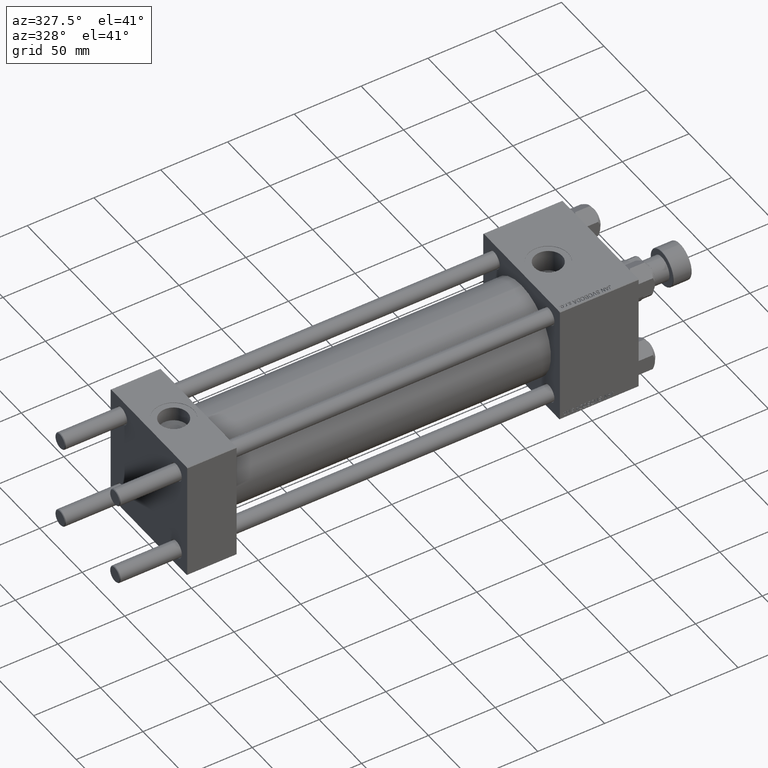
[diagram: clean part render]
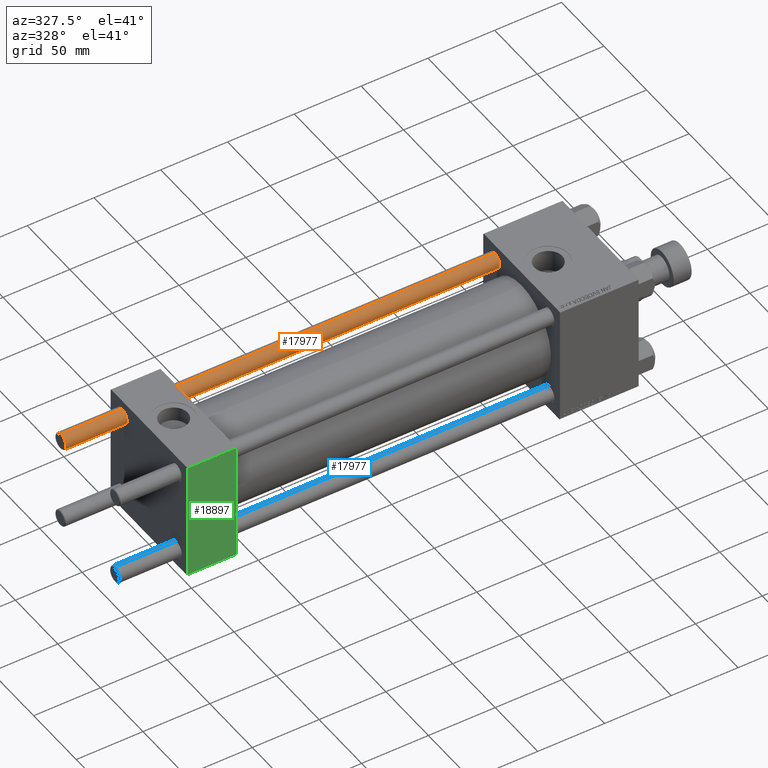
[diagram: same view with three faces highlighted in distinct colors, each labeled with its STEP entity id]
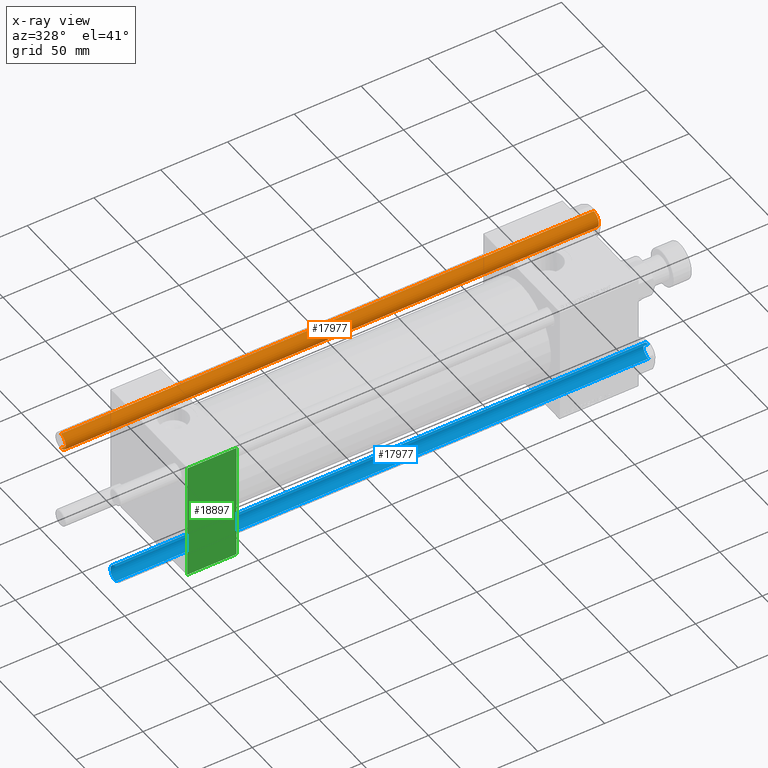
[diagram: x-ray of the same camera — body ghosted, the three highlighted faces saturated]
A machine part, auxiliary view with three faces highlighted in distinct colors.
The next image is the same camera in x-ray (body ghosted, the three faces saturated) — at least one of them is partly hidden behind the body in this view.
Their STEP definitions:

[orange] entity #17977 — the highlighted cylindrical surface (edge-blend (fillet) strip) has radius 6 mm, axis along (-1, -0, -0).
#1877 = EDGE_CURVE ( 'NONE', #40832, #13497, #8719, .T. ) ;
#2171 = ORIENTED_EDGE ( 'NONE', *, *, #1877, .T. ) ;
#2324 = VECTOR ( 'NONE', #48923, 1000.000000000000000 ) ;
#5380 = EDGE_CURVE ( 'NONE', #40832, #17504, #48424, .T. ) ;
#5912 = FACE_OUTER_BOUND ( 'NONE', #13987, .T. ) ;
#5990 = CARTESIAN_POINT ( 'NONE',  ( 6.000000000000000888, 7.347880794884120722E-16, 400.0000000000000000 ) ) ;
#6394 = DIRECTION ( 'NONE',  ( -1.000000000000000000, 0.000000000000000000, 0.000000000000000000 ) ) ;
#7726 = CIRCLE ( 'NONE', #16636, 6.000000000000000888 ) ;
#8371 = CARTESIAN_POINT ( 'NONE',  ( -6.000000000000000888, 0.000000000000000000, 400.0000000000000000 ) ) ;
#8630 = CARTESIAN_POINT ( 'NONE',  ( 6.000000000000000888, 7.347880794884120722E-16, 0.5000000000000004441 ) ) ;
#8719 = CIRCLE ( 'NONE', #24965, 6.000000000000000888 ) ;
#12286 = ORIENTED_EDGE ( 'NONE', *, *, #42449, .T. ) ;
#12485 = VERTEX_POINT ( 'NONE', #21336 ) ;
#13497 = VERTEX_POINT ( 'NONE', #18390 ) ;
#13987 = EDGE_LOOP ( 'NONE', ( #50209, #2171, #45326, #12286 ) ) ;
#15001 = DIRECTION ( 'NONE',  ( 0.000000000000000000, 0.000000000000000000, -1.000000000000000000 ) ) ;
#16636 = AXIS2_PLACEMENT_3D ( 'NONE', #30912, #34227, #49494 ) ;
#17504 = VERTEX_POINT ( 'NONE', #8630 ) ;
#17977 = ADVANCED_FACE ( 'NONE', ( #5912 ), #29020, .T. ) ;
#18390 = CARTESIAN_POINT ( 'NONE',  ( -6.000000000000000888, 0.000000000000000000, 399.5000000000000000 ) ) ;
#18556 = DIRECTION ( 'NONE',  ( 1.000000000000000000, 0.000000000000000000, 0.000000000000000000 ) ) ;
#18854 = EDGE_CURVE ( 'NONE', #13497, #12485, #46999, .T. ) ;
#21336 = CARTESIAN_POINT ( 'NONE',  ( -6.000000000000000888, 0.000000000000000000, 0.5000000000000004441 ) ) ;
#24965 = AXIS2_PLACEMENT_3D ( 'NONE', #46765, #15001, #18556 ) ;
#25205 = DIRECTION ( 'NONE',  ( -0.000000000000000000, -0.000000000000000000, -1.000000000000000000 ) ) ;
#29020 = CYLINDRICAL_SURFACE ( 'NONE', #44007, 6.000000000000000888 ) ;
#29858 = CARTESIAN_POINT ( 'NONE',  ( 6.000000000000000888, 7.347880794884120722E-16, 399.5000000000000000 ) ) ;
#30912 = CARTESIAN_POINT ( 'NONE',  ( 0.000000000000000000, 0.000000000000000000, 0.5000000000000004441 ) ) ;
#34227 = DIRECTION ( 'NONE',  ( -0.000000000000000000, -0.000000000000000000, 1.000000000000000000 ) ) ;
#37369 = CARTESIAN_POINT ( 'NONE',  ( 0.000000000000000000, 0.000000000000000000, 400.0000000000000000 ) ) ;
#40832 = VERTEX_POINT ( 'NONE', #29858 ) ;
#42449 = EDGE_CURVE ( 'NONE', #12485, #17504, #7726, .T. ) ;
#42666 = DIRECTION ( 'NONE',  ( -0.000000000000000000, -0.000000000000000000, -1.000000000000000000 ) ) ;
#44007 = AXIS2_PLACEMENT_3D ( 'NONE', #37369, #25205, #6394 ) ;
#44046 = VECTOR ( 'NONE', #42666, 1000.000000000000000 ) ;
#45326 = ORIENTED_EDGE ( 'NONE', *, *, #18854, .T. ) ;
#46765 = CARTESIAN_POINT ( 'NONE',  ( 0.000000000000000000, 0.000000000000000000, 399.5000000000000000 ) ) ;
#46999 = LINE ( 'NONE', #8371, #44046 ) ;
#48424 = LINE ( 'NONE', #5990, #2324 ) ;
#48923 = DIRECTION ( 'NONE',  ( -0.000000000000000000, -0.000000000000000000, -1.000000000000000000 ) ) ;
#49494 = DIRECTION ( 'NONE',  ( 1.000000000000000000, 0.000000000000000000, 0.000000000000000000 ) ) ;
#50209 = ORIENTED_EDGE ( 'NONE', *, *, #5380, .F. ) ;

[blue] entity #17977 — the highlighted cylindrical surface (edge-blend (fillet) strip) has radius 6 mm, axis along (-1, 0, 0).
#1877 = EDGE_CURVE ( 'NONE', #40832, #13497, #8719, .T. ) ;
#2171 = ORIENTED_EDGE ( 'NONE', *, *, #1877, .T. ) ;
#2324 = VECTOR ( 'NONE', #48923, 1000.000000000000000 ) ;
#5380 = EDGE_CURVE ( 'NONE', #40832, #17504, #48424, .T. ) ;
#5912 = FACE_OUTER_BOUND ( 'NONE', #13987, .T. ) ;
#5990 = CARTESIAN_POINT ( 'NONE',  ( 6.000000000000000888, 7.347880794884120722E-16, 400.0000000000000000 ) ) ;
#6394 = DIRECTION ( 'NONE',  ( -1.000000000000000000, 0.000000000000000000, 0.000000000000000000 ) ) ;
#7726 = CIRCLE ( 'NONE', #16636, 6.000000000000000888 ) ;
#8371 = CARTESIAN_POINT ( 'NONE',  ( -6.000000000000000888, 0.000000000000000000, 400.0000000000000000 ) ) ;
#8630 = CARTESIAN_POINT ( 'NONE',  ( 6.000000000000000888, 7.347880794884120722E-16, 0.5000000000000004441 ) ) ;
#8719 = CIRCLE ( 'NONE', #24965, 6.000000000000000888 ) ;
#12286 = ORIENTED_EDGE ( 'NONE', *, *, #42449, .T. ) ;
#12485 = VERTEX_POINT ( 'NONE', #21336 ) ;
#13497 = VERTEX_POINT ( 'NONE', #18390 ) ;
#13987 = EDGE_LOOP ( 'NONE', ( #50209, #2171, #45326, #12286 ) ) ;
#15001 = DIRECTION ( 'NONE',  ( 0.000000000000000000, 0.000000000000000000, -1.000000000000000000 ) ) ;
#16636 = AXIS2_PLACEMENT_3D ( 'NONE', #30912, #34227, #49494 ) ;
#17504 = VERTEX_POINT ( 'NONE', #8630 ) ;
#17977 = ADVANCED_FACE ( 'NONE', ( #5912 ), #29020, .T. ) ;
#18390 = CARTESIAN_POINT ( 'NONE',  ( -6.000000000000000888, 0.000000000000000000, 399.5000000000000000 ) ) ;
#18556 = DIRECTION ( 'NONE',  ( 1.000000000000000000, 0.000000000000000000, 0.000000000000000000 ) ) ;
#18854 = EDGE_CURVE ( 'NONE', #13497, #12485, #46999, .T. ) ;
#21336 = CARTESIAN_POINT ( 'NONE',  ( -6.000000000000000888, 0.000000000000000000, 0.5000000000000004441 ) ) ;
#24965 = AXIS2_PLACEMENT_3D ( 'NONE', #46765, #15001, #18556 ) ;
#25205 = DIRECTION ( 'NONE',  ( -0.000000000000000000, -0.000000000000000000, -1.000000000000000000 ) ) ;
#29020 = CYLINDRICAL_SURFACE ( 'NONE', #44007, 6.000000000000000888 ) ;
#29858 = CARTESIAN_POINT ( 'NONE',  ( 6.000000000000000888, 7.347880794884120722E-16, 399.5000000000000000 ) ) ;
#30912 = CARTESIAN_POINT ( 'NONE',  ( 0.000000000000000000, 0.000000000000000000, 0.5000000000000004441 ) ) ;
#34227 = DIRECTION ( 'NONE',  ( -0.000000000000000000, -0.000000000000000000, 1.000000000000000000 ) ) ;
#37369 = CARTESIAN_POINT ( 'NONE',  ( 0.000000000000000000, 0.000000000000000000, 400.0000000000000000 ) ) ;
#40832 = VERTEX_POINT ( 'NONE', #29858 ) ;
#42449 = EDGE_CURVE ( 'NONE', #12485, #17504, #7726, .T. ) ;
#42666 = DIRECTION ( 'NONE',  ( -0.000000000000000000, -0.000000000000000000, -1.000000000000000000 ) ) ;
#44007 = AXIS2_PLACEMENT_3D ( 'NONE', #37369, #25205, #6394 ) ;
#44046 = VECTOR ( 'NONE', #42666, 1000.000000000000000 ) ;
#45326 = ORIENTED_EDGE ( 'NONE', *, *, #18854, .T. ) ;
#46765 = CARTESIAN_POINT ( 'NONE',  ( 0.000000000000000000, 0.000000000000000000, 399.5000000000000000 ) ) ;
#46999 = LINE ( 'NONE', #8371, #44046 ) ;
#48424 = LINE ( 'NONE', #5990, #2324 ) ;
#48923 = DIRECTION ( 'NONE',  ( -0.000000000000000000, -0.000000000000000000, -1.000000000000000000 ) ) ;
#49494 = DIRECTION ( 'NONE',  ( 1.000000000000000000, 0.000000000000000000, 0.000000000000000000 ) ) ;
#50209 = ORIENTED_EDGE ( 'NONE', *, *, #5380, .F. ) ;

[green] entity #18897 — the highlighted planar face has unit normal (0, 1, 0).
#238 = DIRECTION ( 'NONE',  ( 0.000000000000000000, -7.709882115452478166E-17, 1.000000000000000000 ) ) ;
#825 = CARTESIAN_POINT ( 'NONE',  ( 37.00000000000000000, -45.00000000000000711, 44.49999999999997158 ) ) ;
#3450 = CARTESIAN_POINT ( 'NONE',  ( 37.00000000000000000, -45.00000000000000711, 45.00000000000000000 ) ) ;
#5963 = VECTOR ( 'NONE', #45388, 1000.000000000000000 ) ;
#8186 = LINE ( 'NONE', #825, #10001 ) ;
#10001 = VECTOR ( 'NONE', #27246, 1000.000000000000000 ) ;
#12810 = CARTESIAN_POINT ( 'NONE',  ( 0.000000000000000000, -45.00000000000000000, -44.49999999999995737 ) ) ;
#13296 = VERTEX_POINT ( 'NONE', #20852 ) ;
#14374 = LINE ( 'NONE', #3450, #5963 ) ;
#15964 = PLANE ( 'NONE',  #24559 ) ;
#16220 = CARTESIAN_POINT ( 'NONE',  ( 37.00000000000000000, -45.00000000000000711, 45.00000000000000000 ) ) ;
#17828 = ORIENTED_EDGE ( 'NONE', *, *, #38558, .F. ) ;
#18897 = ADVANCED_FACE ( 'NONE', ( #42916 ), #15964, .F. ) ;
#20532 = LINE ( 'NONE', #31964, #31846 ) ;
#20743 = EDGE_CURVE ( 'NONE', #13296, #29524, #8186, .T. ) ;
#20852 = CARTESIAN_POINT ( 'NONE',  ( 37.00000000000000000, -45.00000000000000711, 44.49999999999997158 ) ) ;
#22424 = EDGE_LOOP ( 'NONE', ( #49820, #42291, #17828, #37211 ) ) ;
#24111 = CARTESIAN_POINT ( 'NONE',  ( 37.00000000000000000, -45.00000000000000000, -44.49999999999995737 ) ) ;
#24337 = DIRECTION ( 'NONE',  ( 1.000000000000000000, 0.000000000000000000, 0.000000000000000000 ) ) ;
#24559 = AXIS2_PLACEMENT_3D ( 'NONE', #16220, #31213, #238 ) ;
#27246 = DIRECTION ( 'NONE',  ( -1.000000000000000000, 0.000000000000000000, 0.000000000000000000 ) ) ;
#27883 = EDGE_CURVE ( 'NONE', #29524, #46010, #44868, .T. ) ;
#29524 = VERTEX_POINT ( 'NONE', #45248 ) ;
#29611 = DIRECTION ( 'NONE',  ( 0.000000000000000000, 7.709882115452476934E-17, -1.000000000000000000 ) ) ;
#29962 = VERTEX_POINT ( 'NONE', #24111 ) ;
#31213 = DIRECTION ( 'NONE',  ( -0.000000000000000000, 1.000000000000000000, 7.709882115452478166E-17 ) ) ;
#31846 = VECTOR ( 'NONE', #24337, 1000.000000000000000 ) ;
#31964 = CARTESIAN_POINT ( 'NONE',  ( 37.00000000000000000, -45.00000000000000000, -44.49999999999998579 ) ) ;
#33666 = CARTESIAN_POINT ( 'NONE',  ( 0.000000000000000000, -45.00000000000000711, 45.00000000000000000 ) ) ;
#35540 = EDGE_CURVE ( 'NONE', #46010, #29962, #20532, .T. ) ;
#37211 = ORIENTED_EDGE ( 'NONE', *, *, #20743, .T. ) ;
#38558 = EDGE_CURVE ( 'NONE', #13296, #29962, #14374, .T. ) ;
#42291 = ORIENTED_EDGE ( 'NONE', *, *, #35540, .T. ) ;
#42916 = FACE_OUTER_BOUND ( 'NONE', #22424, .T. ) ;
#44868 = LINE ( 'NONE', #33666, #47941 ) ;
#45248 = CARTESIAN_POINT ( 'NONE',  ( 0.000000000000000000, -45.00000000000000711, 44.49999999999997158 ) ) ;
#45388 = DIRECTION ( 'NONE',  ( 0.000000000000000000, 7.709882115452476934E-17, -1.000000000000000000 ) ) ;
#46010 = VERTEX_POINT ( 'NONE', #12810 ) ;
#47941 = VECTOR ( 'NONE', #29611, 1000.000000000000000 ) ;
#49820 = ORIENTED_EDGE ( 'NONE', *, *, #27883, .T. ) ;